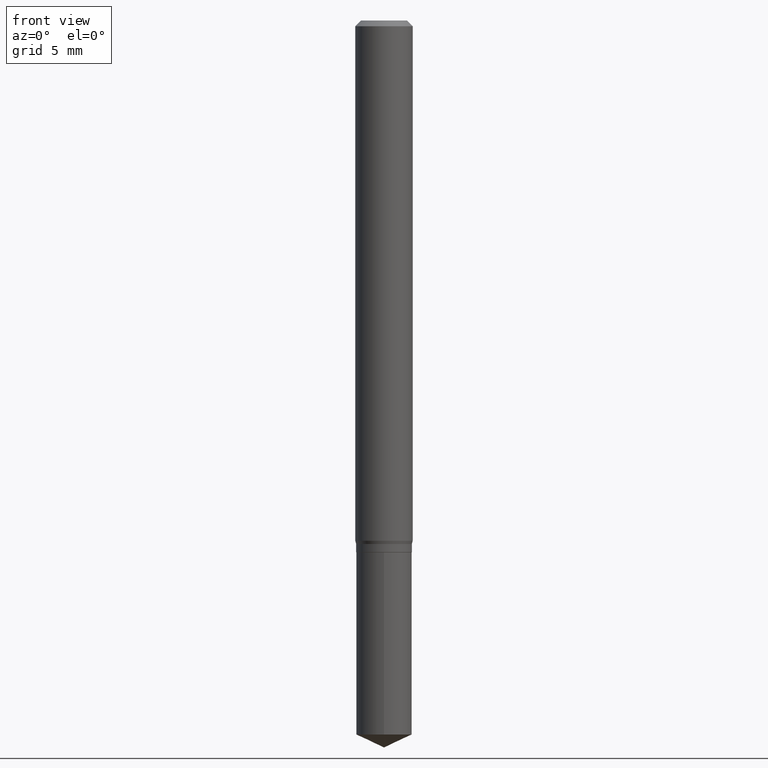
[diagram: clean part render]
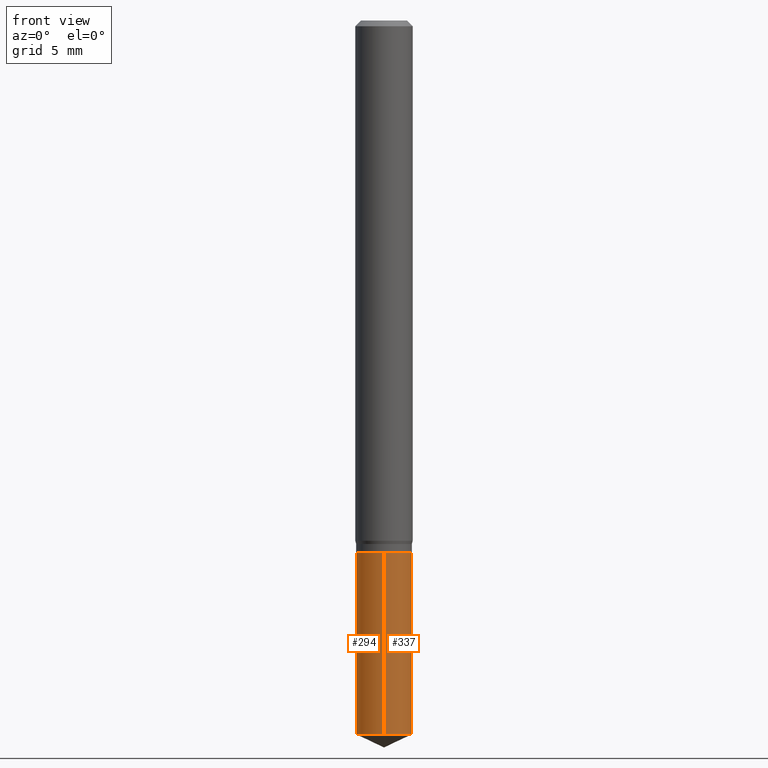
[diagram: same view with one multi-face feature highlighted, each face labeled with its STEP entity id]
A machine part, front view. The highlighted faces form ONE feature: a constant-radius fillet chain: 2 tangent blend faces with common blend radius 1.4554 mm. The faces share edges in the B-rep.
Their STEP definitions:
[1] entity #337 (Cylinder):
#3 = ORIENTED_EDGE ( 'NONE', *, *, #273, .T. ) ;
#17 = DIRECTION ( 'NONE',  ( -2.445458899330790108E-29, 3.491495526022433205E-15, 1.000000000000000000 ) ) ;
#23 = CARTESIAN_POINT ( 'NONE',  ( 4.071409875905640569E-16, 0.05729999999999616650, -1.094500000000000028 ) ) ;
#33 = VECTOR ( 'NONE', #447, 39.37007874015748143 ) ;
#38 = AXIS2_PLACEMENT_3D ( 'NONE', #56, #17, #167 ) ;
#46 = EDGE_CURVE ( 'NONE', #234, #472, #330, .T. ) ;
#54 = VERTEX_POINT ( 'NONE', #260 ) ;
#56 = CARTESIAN_POINT ( 'NONE',  ( 2.676565608369631794E-29, -3.821426325363822773E-15, -1.094499999999999806 ) ) ;
#65 = VECTOR ( 'NONE', #250, 39.37007874015748143 ) ;
#87 = EDGE_LOOP ( 'NONE', ( #3, #244, #300, #439 ) ) ;
#93 = DIRECTION ( 'NONE',  ( -2.445458899330790108E-29, 3.491495526022433205E-15, 1.000000000000000000 ) ) ;
#96 = CARTESIAN_POINT ( 'NONE',  ( 3.593320637366847037E-29, -5.130320162458476413E-15, -1.469380571187718143 ) ) ;
#101 = AXIS2_PLACEMENT_3D ( 'NONE', #246, #201, #354 ) ;
#121 = FACE_OUTER_BOUND ( 'NONE', #87, .T. ) ;
#151 = CARTESIAN_POINT ( 'NONE',  ( -4.001237614313871708E-16, -0.05730000000000515237, -1.469380571187717921 ) ) ;
#167 = DIRECTION ( 'NONE',  ( -6.982962677686265922E-15, -1.000000000000000000, 2.383811512796041453E-15 ) ) ;
#198 = CARTESIAN_POINT ( 'NONE',  ( 4.071409875905733753E-16, 0.05729999999999488280, -1.469380571187718587 ) ) ;
#201 = DIRECTION ( 'NONE',  ( -2.445458899330790108E-29, 3.491495526022433205E-15, 1.000000000000000000 ) ) ;
#204 = VERTEX_POINT ( 'NONE', #151 ) ;
#205 = CIRCLE ( 'NONE', #308, 0.05729999999999999677 ) ;
#207 = DIRECTION ( 'NONE',  ( -6.982962677686265922E-15, -1.000000000000000000, 4.767623025592082905E-15 ) ) ;
#234 = VERTEX_POINT ( 'NONE', #198 ) ;
#244 = ORIENTED_EDGE ( 'NONE', *, *, #46, .T. ) ;
#246 = CARTESIAN_POINT ( 'NONE',  ( 2.676565608369631794E-29, -3.821426325363822773E-15, -1.094499999999999806 ) ) ;
#250 = DIRECTION ( 'NONE',  ( -2.445458899330790108E-29, 3.491495526022433599E-15, 1.000000000000000000 ) ) ;
#260 = CARTESIAN_POINT ( 'NONE',  ( -4.001237614313962920E-16, -0.05730000000000382010, -1.094499999999999806 ) ) ;
#273 = EDGE_CURVE ( 'NONE', #204, #234, #205, .T. ) ;
#277 = CARTESIAN_POINT ( 'NONE',  ( 4.071409875905732767E-16, 0.05729999999999616650, -1.094500000000000028 ) ) ;
#282 = EDGE_CURVE ( 'NONE', #54, #472, #450, .T. ) ;
#300 = ORIENTED_EDGE ( 'NONE', *, *, #282, .F. ) ;
#308 = AXIS2_PLACEMENT_3D ( 'NONE', #96, #93, #207 ) ;
#310 = EDGE_CURVE ( 'NONE', #204, #54, #321, .T. ) ;
#321 = LINE ( 'NONE', #471, #65 ) ;
#330 = LINE ( 'NONE', #23, #33 ) ;
#337 = ADVANCED_FACE ( 'NONE', ( #121 ), #476, .T. ) ;
#354 = DIRECTION ( 'NONE',  ( -6.982962677686265922E-15, -1.000000000000000000, 2.383811512796041453E-15 ) ) ;
#439 = ORIENTED_EDGE ( 'NONE', *, *, #310, .F. ) ;
#447 = DIRECTION ( 'NONE',  ( -2.445458899330790108E-29, 3.491495526022433599E-15, 1.000000000000000000 ) ) ;
#450 = CIRCLE ( 'NONE', #101, 0.05729999999999999677 ) ;
#471 = CARTESIAN_POINT ( 'NONE',  ( -4.001237614313962920E-16, -0.05730000000000382010, -1.094499999999999806 ) ) ;
#472 = VERTEX_POINT ( 'NONE', #277 ) ;
#476 = CYLINDRICAL_SURFACE ( 'NONE', #38, 0.05729999999999999677 ) ;
[2] entity #294 (Cylinder):
#11 = CYLINDRICAL_SURFACE ( 'NONE', #90, 0.05729999999999999677 ) ;
#13 = DIRECTION ( 'NONE',  ( -2.445458899330790108E-29, 3.491495526022433205E-15, 1.000000000000000000 ) ) ;
#14 = ORIENTED_EDGE ( 'NONE', *, *, #310, .T. ) ;
#23 = CARTESIAN_POINT ( 'NONE',  ( 4.071409875905640569E-16, 0.05729999999999616650, -1.094500000000000028 ) ) ;
#30 = CIRCLE ( 'NONE', #112, 0.05729999999999999677 ) ;
#33 = VECTOR ( 'NONE', #447, 39.37007874015748143 ) ;
#46 = EDGE_CURVE ( 'NONE', #234, #472, #330, .T. ) ;
#50 = CARTESIAN_POINT ( 'NONE',  ( 2.676565608369631794E-29, -3.821426325363822773E-15, -1.094499999999999806 ) ) ;
#54 = VERTEX_POINT ( 'NONE', #260 ) ;
#65 = VECTOR ( 'NONE', #250, 39.37007874015748143 ) ;
#90 = AXIS2_PLACEMENT_3D ( 'NONE', #50, #13, #437 ) ;
#108 = CARTESIAN_POINT ( 'NONE',  ( 3.593320637366847037E-29, -5.130320162458476413E-15, -1.469380571187718143 ) ) ;
#112 = AXIS2_PLACEMENT_3D ( 'NONE', #108, #185, #416 ) ;
#118 = DIRECTION ( 'NONE',  ( -6.982962677686265922E-15, -1.000000000000000000, 2.383811512796041453E-15 ) ) ;
#151 = CARTESIAN_POINT ( 'NONE',  ( -4.001237614313871708E-16, -0.05730000000000515237, -1.469380571187717921 ) ) ;
#165 = EDGE_CURVE ( 'NONE', #234, #204, #30, .T. ) ;
#182 = ORIENTED_EDGE ( 'NONE', *, *, #46, .F. ) ;
#185 = DIRECTION ( 'NONE',  ( -2.445458899330790108E-29, 3.491495526022433205E-15, 1.000000000000000000 ) ) ;
#192 = CARTESIAN_POINT ( 'NONE',  ( 2.676565608369631794E-29, -3.821426325363822773E-15, -1.094499999999999806 ) ) ;
#198 = CARTESIAN_POINT ( 'NONE',  ( 4.071409875905733753E-16, 0.05729999999999488280, -1.469380571187718587 ) ) ;
#202 = CIRCLE ( 'NONE', #385, 0.05729999999999999677 ) ;
#204 = VERTEX_POINT ( 'NONE', #151 ) ;
#234 = VERTEX_POINT ( 'NONE', #198 ) ;
#238 = ORIENTED_EDGE ( 'NONE', *, *, #165, .T. ) ;
#250 = DIRECTION ( 'NONE',  ( -2.445458899330790108E-29, 3.491495526022433599E-15, 1.000000000000000000 ) ) ;
#260 = CARTESIAN_POINT ( 'NONE',  ( -4.001237614313962920E-16, -0.05730000000000382010, -1.094499999999999806 ) ) ;
#271 = DIRECTION ( 'NONE',  ( -2.445458899330790108E-29, 3.491495526022433205E-15, 1.000000000000000000 ) ) ;
#277 = CARTESIAN_POINT ( 'NONE',  ( 4.071409875905732767E-16, 0.05729999999999616650, -1.094500000000000028 ) ) ;
#294 = ADVANCED_FACE ( 'NONE', ( #357 ), #11, .T. ) ;
#310 = EDGE_CURVE ( 'NONE', #204, #54, #321, .T. ) ;
#321 = LINE ( 'NONE', #471, #65 ) ;
#330 = LINE ( 'NONE', #23, #33 ) ;
#336 = ORIENTED_EDGE ( 'NONE', *, *, #409, .F. ) ;
#357 = FACE_OUTER_BOUND ( 'NONE', #383, .T. ) ;
#383 = EDGE_LOOP ( 'NONE', ( #182, #238, #14, #336 ) ) ;
#385 = AXIS2_PLACEMENT_3D ( 'NONE', #192, #271, #118 ) ;
#409 = EDGE_CURVE ( 'NONE', #472, #54, #202, .T. ) ;
#416 = DIRECTION ( 'NONE',  ( -6.982962677686265922E-15, -1.000000000000000000, 4.767623025592082905E-15 ) ) ;
#437 = DIRECTION ( 'NONE',  ( -6.982962677686265922E-15, -1.000000000000000000, 2.383811512796041453E-15 ) ) ;
#447 = DIRECTION ( 'NONE',  ( -2.445458899330790108E-29, 3.491495526022433599E-15, 1.000000000000000000 ) ) ;
#471 = CARTESIAN_POINT ( 'NONE',  ( -4.001237614313962920E-16, -0.05730000000000382010, -1.094499999999999806 ) ) ;
#472 = VERTEX_POINT ( 'NONE', #277 ) ;